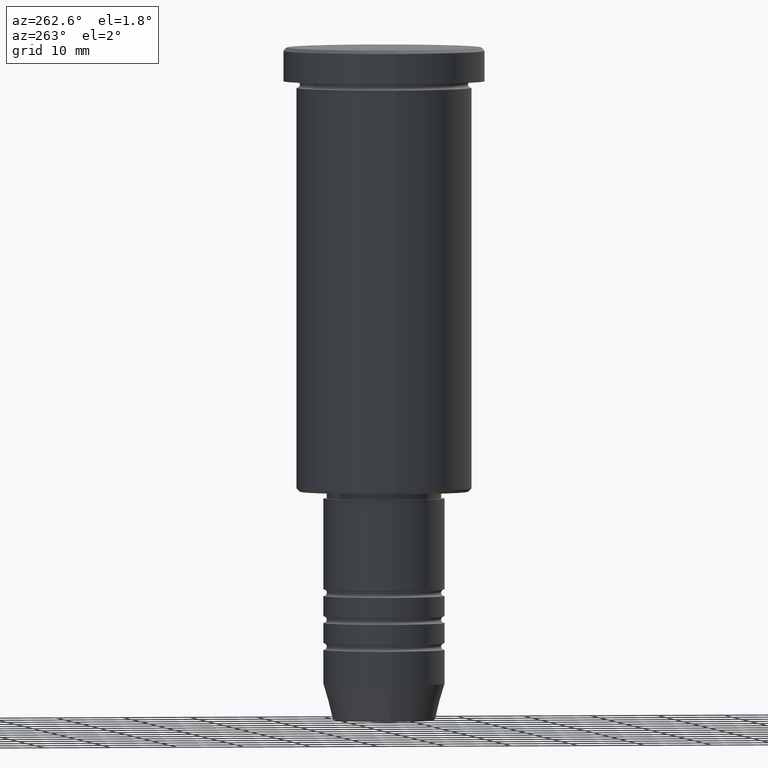
[diagram: clean part render]
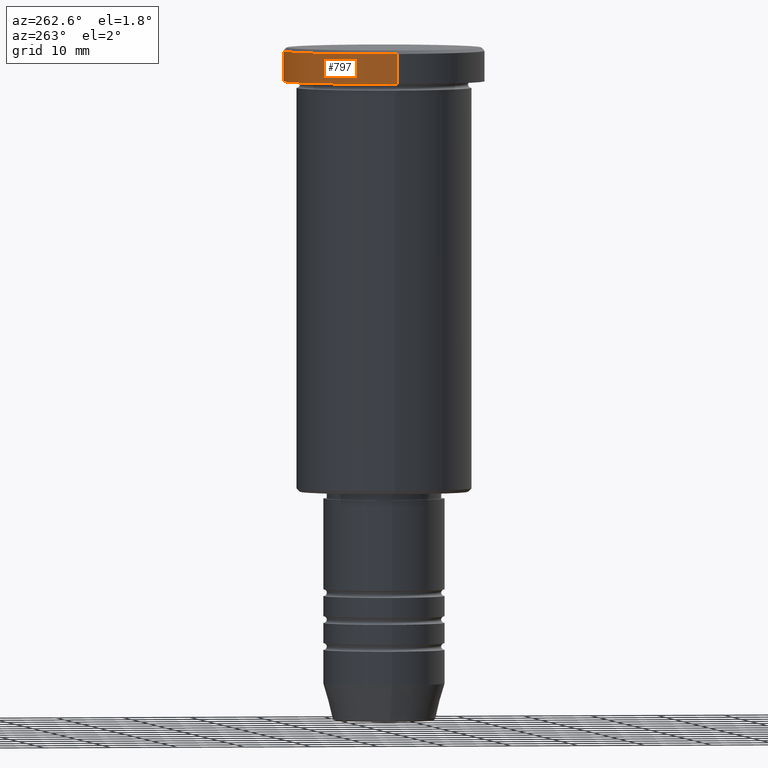
[diagram: same view with one face highlighted and labeled with its STEP entity id]
A machine part, auxiliary view. The second image highlights one B-rep face of the part: STEP entity #797.
In plain terms, the highlighted cylindrical surface (partial cylindrical patch) has radius 15 mm, axis along (-0, -0, 1).
Its self-contained STEP definition (entity closure, byte-faithful):
#27 = LINE ( 'NONE', #543, #185 ) ;
#41 = CARTESIAN_POINT ( 'NONE',  ( 15.00000000000000000, 0.000000000000000000, -4.999999999999999112 ) ) ;
#70 = VERTEX_POINT ( 'NONE', #106 ) ;
#106 = CARTESIAN_POINT ( 'NONE',  ( 15.00000000000000000, 0.000000000000000000, -0.4999999999999831246 ) ) ;
#116 = DIRECTION ( 'NONE',  ( 1.000000000000000000, 0.000000000000000000, 0.000000000000000000 ) ) ;
#120 = EDGE_LOOP ( 'NONE', ( #545, #707, #752, #980 ) ) ;
#149 = CIRCLE ( 'NONE', #641, 15.00000000000000000 ) ;
#161 = EDGE_CURVE ( 'NONE', #281, #70, #753, .T. ) ;
#185 = VECTOR ( 'NONE', #826, 1000.000000000000000 ) ;
#234 = EDGE_CURVE ( 'NONE', #855, #281, #853, .T. ) ;
#249 = AXIS2_PLACEMENT_3D ( 'NONE', #692, #506, #681 ) ;
#268 = CARTESIAN_POINT ( 'NONE',  ( 0.000000000000000000, 0.000000000000000000, -4.999999999999999112 ) ) ;
#273 = DIRECTION ( 'NONE',  ( 0.000000000000000000, 0.000000000000000000, -1.000000000000000000 ) ) ;
#276 = VECTOR ( 'NONE', #455, 1000.000000000000000 ) ;
#281 = VERTEX_POINT ( 'NONE', #443 ) ;
#363 = AXIS2_PLACEMENT_3D ( 'NONE', #704, #273, #528 ) ;
#388 = EDGE_CURVE ( 'NONE', #636, #855, #149, .T. ) ;
#443 = CARTESIAN_POINT ( 'NONE',  ( -15.00000000000000000, 1.836970198721029589E-15, -0.4999999999999831246 ) ) ;
#455 = DIRECTION ( 'NONE',  ( -0.000000000000000000, -0.000000000000000000, 1.000000000000000000 ) ) ;
#506 = DIRECTION ( 'NONE',  ( -0.000000000000000000, -0.000000000000000000, 1.000000000000000000 ) ) ;
#528 = DIRECTION ( 'NONE',  ( 1.000000000000000000, 0.000000000000000000, 0.000000000000000000 ) ) ;
#543 = CARTESIAN_POINT ( 'NONE',  ( 15.00000000000000000, 0.000000000000000000, 0.000000000000000000 ) ) ;
#545 = ORIENTED_EDGE ( 'NONE', *, *, #388, .T. ) ;
#636 = VERTEX_POINT ( 'NONE', #41 ) ;
#641 = AXIS2_PLACEMENT_3D ( 'NONE', #268, #1010, #116 ) ;
#681 = DIRECTION ( 'NONE',  ( 1.000000000000000000, 0.000000000000000000, 0.000000000000000000 ) ) ;
#692 = CARTESIAN_POINT ( 'NONE',  ( 0.000000000000000000, 0.000000000000000000, 0.000000000000000000 ) ) ;
#704 = CARTESIAN_POINT ( 'NONE',  ( 0.000000000000000000, 0.000000000000000000, -0.4999999999999831246 ) ) ;
#707 = ORIENTED_EDGE ( 'NONE', *, *, #234, .T. ) ;
#752 = ORIENTED_EDGE ( 'NONE', *, *, #161, .T. ) ;
#753 = CIRCLE ( 'NONE', #363, 15.00000000000000000 ) ;
#797 = ADVANCED_FACE ( 'NONE', ( #988 ), #1168, .T. ) ;
#817 = CARTESIAN_POINT ( 'NONE',  ( -15.00000000000000000, 1.836970198721029589E-15, -4.999999999999999112 ) ) ;
#824 = CARTESIAN_POINT ( 'NONE',  ( -15.00000000000000000, 1.836970198721029589E-15, 0.000000000000000000 ) ) ;
#826 = DIRECTION ( 'NONE',  ( -0.000000000000000000, -0.000000000000000000, 1.000000000000000000 ) ) ;
#853 = LINE ( 'NONE', #824, #276 ) ;
#855 = VERTEX_POINT ( 'NONE', #817 ) ;
#980 = ORIENTED_EDGE ( 'NONE', *, *, #1017, .F. ) ;
#988 = FACE_OUTER_BOUND ( 'NONE', #120, .T. ) ;
#1010 = DIRECTION ( 'NONE',  ( -0.000000000000000000, -0.000000000000000000, 1.000000000000000000 ) ) ;
#1017 = EDGE_CURVE ( 'NONE', #636, #70, #27, .T. ) ;
#1168 = CYLINDRICAL_SURFACE ( 'NONE', #249, 15.00000000000000000 ) ;